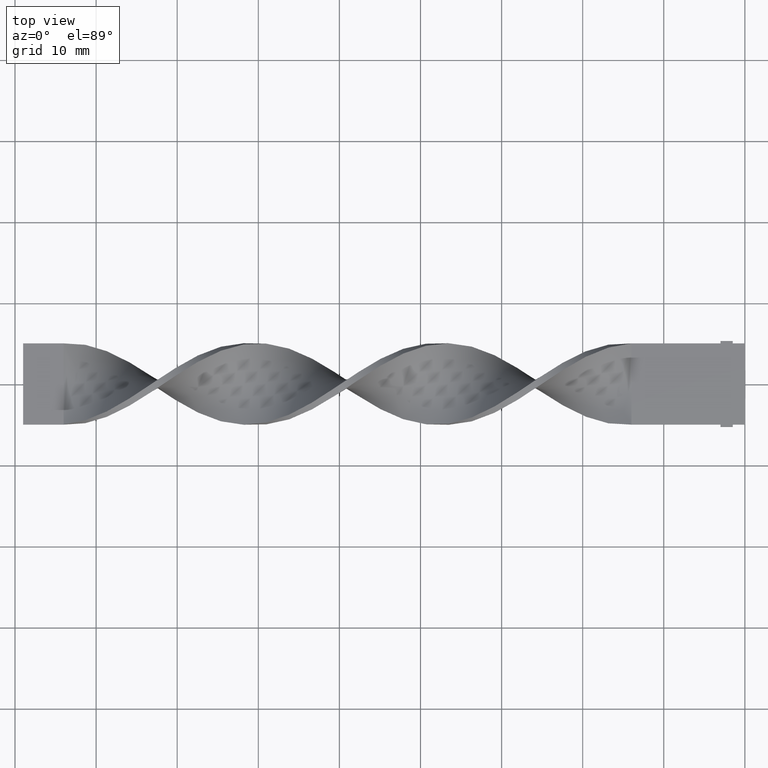
[diagram: clean part render]
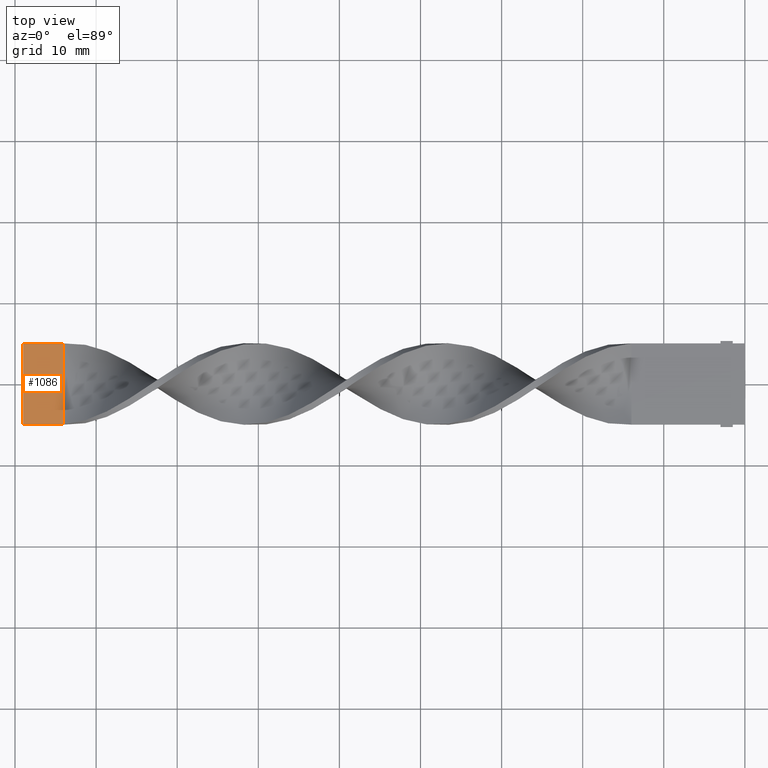
[diagram: same view with one face highlighted and labeled with its STEP entity id]
A machine part, top view. The second image highlights one B-rep face of the part: STEP entity #1086.
In plain terms, the highlighted planar face has unit normal (0, -0, -1).
Its self-contained STEP definition (entity closure, byte-faithful):
#67 = VERTEX_POINT ( 'NONE', #1203 ) ;
#87 = ORIENTED_EDGE ( 'NONE', *, *, #1138, .F. ) ;
#176 = VECTOR ( 'NONE', #744, 1000.000000000000000 ) ;
#215 = CARTESIAN_POINT ( 'NONE',  ( -84.00000000000000000, 4.999999999999995559, 0.4999999999999993339 ) ) ;
#259 = LINE ( 'NONE', #752, #1290 ) ;
#381 = DIRECTION ( 'NONE',  ( 0.000000000000000000, -1.301042606982605567E-16, -1.000000000000000000 ) ) ;
#387 = LINE ( 'NONE', #620, #1368 ) ;
#400 = PLANE ( 'NONE',  #1250 ) ;
#420 = CARTESIAN_POINT ( 'NONE',  ( -89.00000000000001421, -5.000000000000002665, 0.5000000000000006661 ) ) ;
#432 = EDGE_LOOP ( 'NONE', ( #1291, #1148, #87, #1136 ) ) ;
#440 = B_SPLINE_CURVE_WITH_KNOTS ( 'NONE', 3,
 ( #1607, #717, #933, #215 ),
 .UNSPECIFIED., .F., .F.,
 ( 4, 4 ),
 ( 0.000000000000000000, 1.000000000000000000 ),
 .UNSPECIFIED. ) ;
#499 = LINE ( 'NONE', #764, #176 ) ;
#620 = CARTESIAN_POINT ( 'NONE',  ( -89.00000000000001421, 4.999999999999995559, 0.4999999999999993339 ) ) ;
#673 = CARTESIAN_POINT ( 'NONE',  ( -89.00000000000001421, 4.999999999999995559, 0.4999999999999993339 ) ) ;
#717 = CARTESIAN_POINT ( 'NONE',  ( -84.00000000000000000, -1.666666666666670071, 0.5000000000000002220 ) ) ;
#744 = DIRECTION ( 'NONE',  ( 1.000000000000000000, -0.000000000000000000, -0.000000000000000000 ) ) ;
#747 = EDGE_CURVE ( 'NONE', #1341, #67, #440, .T. ) ;
#752 = CARTESIAN_POINT ( 'NONE',  ( -89.00000000000001421, -5.000000000000002665, 0.5000000000000006661 ) ) ;
#764 = CARTESIAN_POINT ( 'NONE',  ( -89.00000000000001421, -5.000000000000002665, 0.5000000000000006661 ) ) ;
#847 = EDGE_CURVE ( 'NONE', #1404, #1341, #499, .T. ) ;
#888 = DIRECTION ( 'NONE',  ( 0.000000000000000000, 1.000000000000000000, -1.301042606982605567E-16 ) ) ;
#933 = CARTESIAN_POINT ( 'NONE',  ( -84.00000000000000000, 1.666666666666663188, 0.4999999999999997780 ) ) ;
#1086 = ADVANCED_FACE ( 'NONE', ( #1508 ), #400, .F. ) ;
#1113 = EDGE_CURVE ( 'NONE', #1275, #67, #387, .T. ) ;
#1136 = ORIENTED_EDGE ( 'NONE', *, *, #847, .T. ) ;
#1138 = EDGE_CURVE ( 'NONE', #1404, #1275, #259, .T. ) ;
#1148 = ORIENTED_EDGE ( 'NONE', *, *, #1113, .F. ) ;
#1203 = CARTESIAN_POINT ( 'NONE',  ( -84.00000000000000000, 4.999999999999995559, 0.4999999999999993339 ) ) ;
#1239 = CARTESIAN_POINT ( 'NONE',  ( -89.00000000000001421, -5.000000000000002665, 0.5000000000000006661 ) ) ;
#1250 = AXIS2_PLACEMENT_3D ( 'NONE', #1239, #381, #888 ) ;
#1253 = DIRECTION ( 'NONE',  ( 0.000000000000000000, 1.000000000000000000, -1.301042606982605567E-16 ) ) ;
#1275 = VERTEX_POINT ( 'NONE', #673 ) ;
#1290 = VECTOR ( 'NONE', #1253, 1000.000000000000000 ) ;
#1291 = ORIENTED_EDGE ( 'NONE', *, *, #747, .T. ) ;
#1292 = CARTESIAN_POINT ( 'NONE',  ( -84.00000000000000000, -5.000000000000002665, 0.5000000000000006661 ) ) ;
#1341 = VERTEX_POINT ( 'NONE', #1292 ) ;
#1360 = DIRECTION ( 'NONE',  ( 1.000000000000000000, -0.000000000000000000, -0.000000000000000000 ) ) ;
#1368 = VECTOR ( 'NONE', #1360, 1000.000000000000000 ) ;
#1404 = VERTEX_POINT ( 'NONE', #420 ) ;
#1508 = FACE_OUTER_BOUND ( 'NONE', #432, .T. ) ;
#1607 = CARTESIAN_POINT ( 'NONE',  ( -84.00000000000000000, -5.000000000000002665, 0.5000000000000006661 ) ) ;